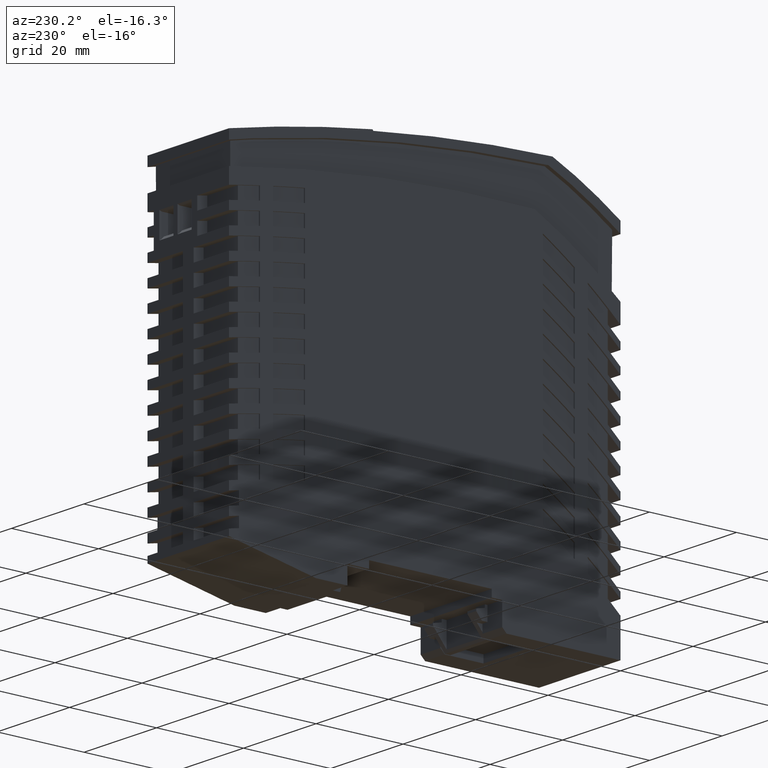
[diagram: clean part render]
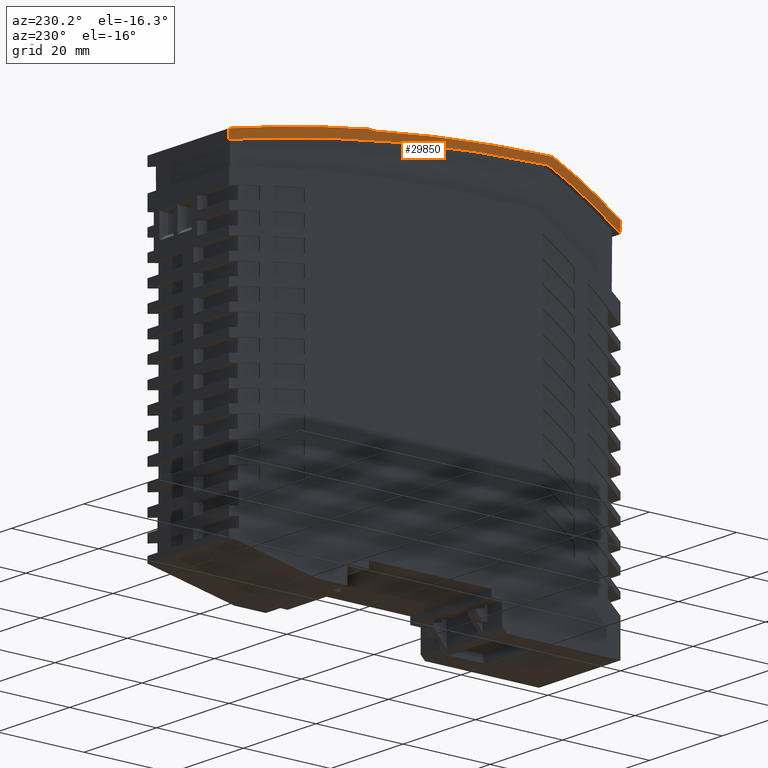
[diagram: same view with one face highlighted and labeled with its STEP entity id]
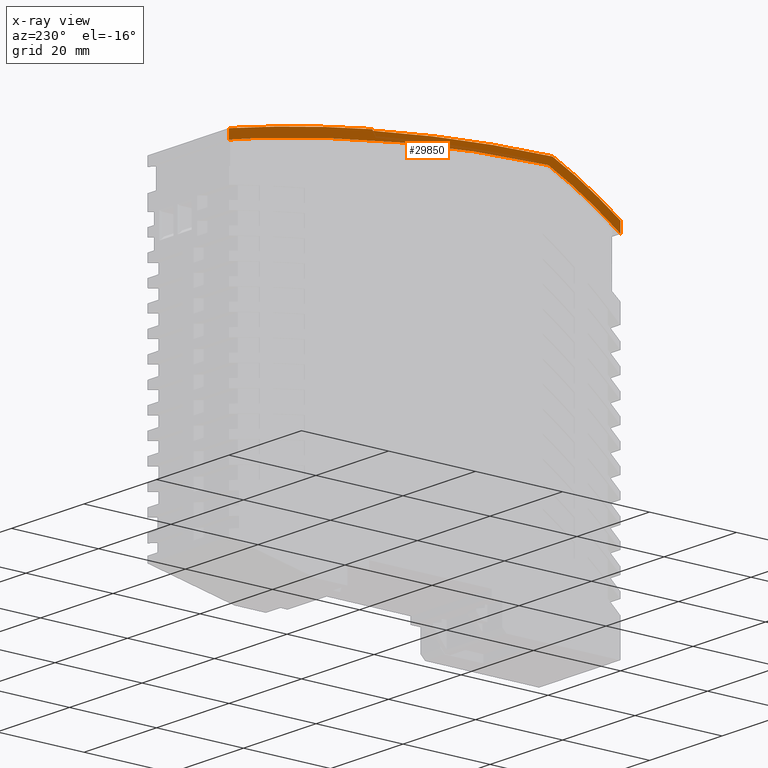
[diagram: x-ray of the same camera — body ghosted, the highlighted face saturated]
A machine part, auxiliary view. The second image highlights one B-rep face of the part: STEP entity #29850.
The next image is the same camera in x-ray: the body ghosted, the highlighted face saturated — about 0% of this face is hidden behind the body in this view.
In plain terms, the highlighted planar face has unit normal (-1, -0, -0).
Its self-contained STEP definition (entity closure, byte-faithful):
#5520=CARTESIAN_POINT('',(-43.8015236073671,79.288939608884,-21.5));
#5530=VERTEX_POINT('',#5520);
#5690=CARTESIAN_POINT('',(-28.3867095319683,88.0226388280955,-21.5));
#5700=VERTEX_POINT('',#5690);
#5730=CARTESIAN_POINT('',(12.017640978483,-1.26055365418858,-21.5));
#5740=DIRECTION('',(0.,0.,1.));
#5750=DIRECTION('',(0.,1.,0.));
#5760=AXIS2_PLACEMENT_3D('',#5730,#5740,#5750);
#5770=CIRCLE('',#5760,97.9999999999999);
#5780=EDGE_CURVE('',#5700,#5530,#5770,.T.);
#23020=CARTESIAN_POINT('',(11.9984763926469,87.0533491582889,
-21.5000000000001));
#23030=VERTEX_POINT('',#23020);
#23060=CARTESIAN_POINT('',(-33.8174223565983,-259.934984106395,-21.5));
#23070=DIRECTION('',(0.,0.,1.));
#23080=DIRECTION('',(0.,1.,0.));
#23090=AXIS2_PLACEMENT_3D('',#23060,#23070,#23080);
#23100=CIRCLE('',#23090,350.000000000006);
#23110=CARTESIAN_POINT('',(44.998476392647,81.0753589982581,-21.5));
#23120=VERTEX_POINT('',#23110);
#23130=EDGE_CURVE('',#23120,#23030,#23100,.T.);
#29130=CARTESIAN_POINT('',(47.4557213926331,81.4659029875863,-21.5));
#29140=DIRECTION('',(-0.,-0.,-1.));
#29150=DIRECTION('',(0.,-1.,0.));
#29160=AXIS2_PLACEMENT_3D('',#29130,#29140,#29150);
#29170=PLANE('',#29160);
#29180=CARTESIAN_POINT('',(-45.0015236073532,0.,-21.5));
#29190=DIRECTION('',(0.,-1.,0.));
#29200=VECTOR('',#29190,1.);
#29210=LINE('',#29180,#29200);
#29220=CARTESIAN_POINT('',(-45.0015236073532,80.8906171830753,-21.5));
#29230=VERTEX_POINT('',#29220);
#29240=CARTESIAN_POINT('',(-45.0015236073532,78.4462417058568,-21.5));
#29250=VERTEX_POINT('',#29240);
#29260=EDGE_CURVE('',#29230,#29250,#29210,.T.);
#29270=ORIENTED_EDGE('',*,*,#29260,.F.);
#29280=CARTESIAN_POINT('',(0.,110.04848302035,-21.5));
#29290=DIRECTION('',(-0.818366609781339,-0.574696521648599,0.));
#29300=VECTOR('',#29290,1.);
#29310=LINE('',#29280,#29300);
#29320=EDGE_CURVE('',#5530,#29250,#29310,.T.);
#29330=ORIENTED_EDGE('',*,*,#29320,.T.);
#29340=ORIENTED_EDGE('',*,*,#5780,.T.);
#29350=CARTESIAN_POINT('',(-33.8174223565965,-259.934984106387,-21.5));
#29360=DIRECTION('',(0.,0.,1.));
#29370=DIRECTION('',(0.,1.,0.));
#29380=AXIS2_PLACEMENT_3D('',#29350,#29360,#29370);
#29390=CIRCLE('',#29380,347.999999999998);
#29400=CARTESIAN_POINT('',(39.218210283461,80.3146248057549,-21.5));
#29410=VERTEX_POINT('',#29400);
#29420=EDGE_CURVE('',#29410,#5700,#29390,.T.);
#29430=ORIENTED_EDGE('',*,*,#29420,.T.);
#29440=CARTESIAN_POINT('',(0.,89.3972561809237,-21.5));
#29450=DIRECTION('',(-0.974215235442107,0.225620644074253,0.));
#29460=VECTOR('',#29450,1.);
#29470=LINE('',#29440,#29460);
#29480=CARTESIAN_POINT('',(44.9984763926468,78.9759602940228,-21.5));
#29490=VERTEX_POINT('',#29480);
#29500=EDGE_CURVE('',#29490,#29410,#29470,.T.);
#29510=ORIENTED_EDGE('',*,*,#29500,.T.);
#29520=CARTESIAN_POINT('',(44.9984763926468,0.,-21.5));
#29530=DIRECTION('',(0.,1.,0.));
#29540=VECTOR('',#29530,1.);
#29550=LINE('',#29520,#29540);
#29560=EDGE_CURVE('',#29490,#23120,#29550,.T.);
#29570=ORIENTED_EDGE('',*,*,#29560,.F.);
#29580=ORIENTED_EDGE('',*,*,#23130,.F.);
#29590=CARTESIAN_POINT('',(11.9984763926468,0.,-21.5));
#29600=DIRECTION('',(0.,1.,0.));
#29610=VECTOR('',#29600,1.);
#29620=LINE('',#29590,#29610);
#29630=CARTESIAN_POINT('',(11.9984763926468,86.7746920814856,-21.5));
#29640=VERTEX_POINT('',#29630);
#29650=EDGE_CURVE('',#29640,#23030,#29620,.T.);
#29660=ORIENTED_EDGE('',*,*,#29650,.T.);
#29670=CARTESIAN_POINT('',(-34.0174223565832,-259.934984106389,-21.5));
#29680=DIRECTION('',(0.,0.,-1.));
#29690=DIRECTION('',(0.149866758396655,0.988706202432087,0.));
#29700=AXIS2_PLACEMENT_3D('',#29670,#29680,#29690);
#29710=CIRCLE('',#29700,349.75);
#29720=CARTESIAN_POINT('',(-29.345667163846,89.783813220005,-21.5));
#29730=VERTEX_POINT('',#29720);
#29740=EDGE_CURVE('',#29730,#29640,#29710,.T.);
#29750=ORIENTED_EDGE('',*,*,#29740,.T.);
#29760=CARTESIAN_POINT('',(12.017640978482,-1.26055365418718,-21.5));
#29770=DIRECTION('',(0.,0.,1.));
#29780=DIRECTION('',(0.,1.,0.));
#29790=AXIS2_PLACEMENT_3D('',#29760,#29770,#29780);
#29800=CIRCLE('',#29790,99.9999999999983);
#29810=EDGE_CURVE('',#29730,#29230,#29800,.T.);
#29820=ORIENTED_EDGE('',*,*,#29810,.F.);
#29830=EDGE_LOOP('',(#29820,#29750,#29660,#29580,#29570,#29510,#29430,
#29340,#29330,#29270));
#29840=FACE_OUTER_BOUND('',#29830,.T.);
#29850=ADVANCED_FACE('',(#29840),#29170,.T.);